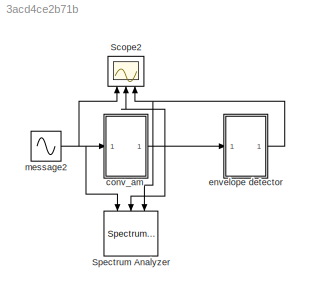
MODEL slx_3acd4ce2b71b
KIND model
CONFIG AbsTol = auto
CONFIG EnableMultiTasking = off
CONFIG FixedStep = auto
CONFIG MaxStep = auto
CONFIG MinStep = auto
CONFIG RelTol = 1e-3
CONFIG SampleTimeConstraint = Unconstrained
CONFIG SolverName = VariableStepAuto
CONFIG StartTime = 0.0
CONFIG StopTime = 10.0
BLOCK [Scope] Scope2
  Floating = off
  NameLocation = right
  NumInputPorts = 3
  Ports = [3]
  ScopeSpecificationString = Simulink.scopes.TimeScopeBlockCfg('CurrentConfiguration', extmgr.ConfigurationSet(extmgr.Configuration('Core','General UI',true,'FigureColor',[1 1 1]),extmgr.Configuration('Core','Source UI',true),extmgr.Configuration('Sources','WiredSimulink',true),extmgr.Configuration('Visuals','Time Domain',true,'SerializedDisplays',{struct('MinYLimReal','-2.2657','MaxYLimReal','2.3073','YLabelReal','','MinYLim...<+1848ch>
BLOCK [SpectrumAnalyzer] Spectrum Analyzer
  NameLocation = left
  NumInputPorts = 3
  Ports = [3]
  ScopeSpecificationString = spbscopes.SpectrumAnalyzerBlockCfg('CurrentConfiguration', extmgr.ConfigurationSet(extmgr.Configuration('Core','General UI',true,'FigureColor',[1 1 1]),extmgr.Configuration('Core','Source UI',true),extmgr.Configuration('Sources','WiredSimulink',true),extmgr.Configuration('Visuals','Spectrum',true,'AxesProperties',struct('Color',{[1 1 1],[1 1 1]},'XColor',{[0 0 0],[0 0 0]},'YColor',{[0 0 0],[0 0 0]...<+1959ch>
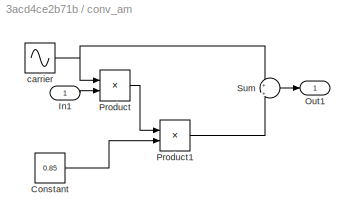
BLOCK [SubSystem] conv_am
  Ports = [1, 1]
  RequestExecContextInheritance = off
BLOCK [Constant] conv_am/Constant
  Value = 0.85
BLOCK [Inport] conv_am/In1
BLOCK [Outport] conv_am/Out1
BLOCK [Product] conv_am/Product
  Ports = [2, 1]
BLOCK [Product] conv_am/Product1
  Ports = [2, 1]
BLOCK [Sum] conv_am/Sum
  Inputs = +|+
  Ports = [2, 1]
BLOCK [Sin] conv_am/carrier
  Frequency = 2*pi*500
  Phase = pi/2
  Ports = [0, 1]
  SampleTime = 0.00001
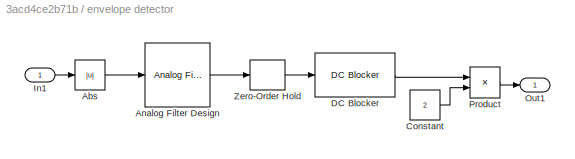
BLOCK [SubSystem] envelope detector
  Ports = [1, 1]
  RequestExecContextInheritance = off
BLOCK [Abs] envelope detector/Abs
  SaturateOnIntegerOverflow = off
BLOCK [Reference] envelope detector/Analog Filter Design  REF=dsparch4/Analog
Filter Design
  Ports = [1, 1]
  SourceBlock = dsparch4/Analog\nFilter Design
  SourceProductBaseCode = DS
  SourceType = Analog Filter Design
BLOCK [Constant] envelope detector/Constant
  Value = 2
BLOCK [Reference] envelope detector/DC Blocker  REF=dspsigops/DC Blocker
  Ports = [1, 1]
  SourceBlock = dspsigops/DC Blocker
  SourceProductBaseCode = DS
  SourceType = DCBlocker
BLOCK [Inport] envelope detector/In1
BLOCK [Outport] envelope detector/Out1
BLOCK [Product] envelope detector/Product
  Ports = [2, 1]
BLOCK [ZeroOrderHold] envelope detector/Zero-Order Hold
  SampleTime = -1
BLOCK [Sin] message2
  Frequency = 2*pi*50
  Phase = pi/2
  Ports = [0, 1]
  SampleTime = 0.00001
LINE conv_am/Constant:1 -> conv_am/Product1:2
LINE conv_am/In1:1 -> conv_am/Product:2
LINE conv_am/Product1:1 -> conv_am/Sum:2
LINE conv_am/Product:1 -> conv_am/Product1:1
LINE conv_am/Sum:1 -> conv_am/Out1:1
NET conv_am/carrier:1 -> conv_am/Product:1, conv_am/Sum:1
NET conv_am:1 -> Scope2:2, Spectrum Analyzer:2, envelope detector:1
LINE envelope detector/Abs:1 -> envelope detector/Analog Filter Design:1
LINE envelope detector/Analog Filter Design:1 -> envelope detector/Zero-Order Hold:1
LINE envelope detector/Constant:1 -> envelope detector/Product:2
LINE envelope detector/DC Blocker:1 -> envelope detector/Product:1
LINE envelope detector/In1:1 -> envelope detector/Abs:1
LINE envelope detector/Product:1 -> envelope detector/Out1:1
LINE envelope detector/Zero-Order Hold:1 -> envelope detector/DC Blocker:1
NET envelope detector:1 -> Scope2:3, Spectrum Analyzer:3
NET message2:1 -> Scope2:1, Spectrum Analyzer:1, conv_am:1
note: NET lines group one-source signal fan-out (src -> all destinations, sorted); 1:1 wires keep LINE
